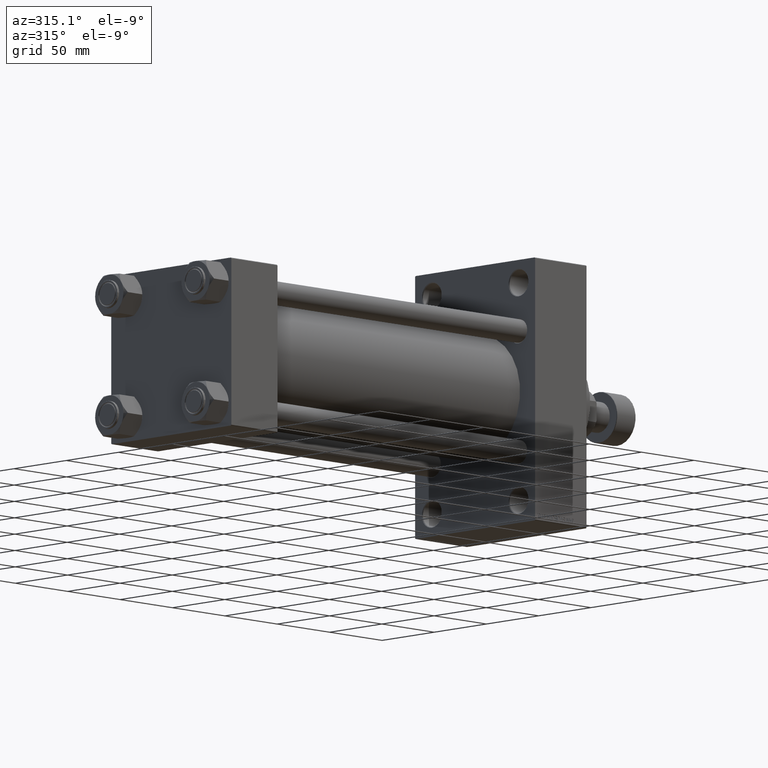
[diagram: clean part render]
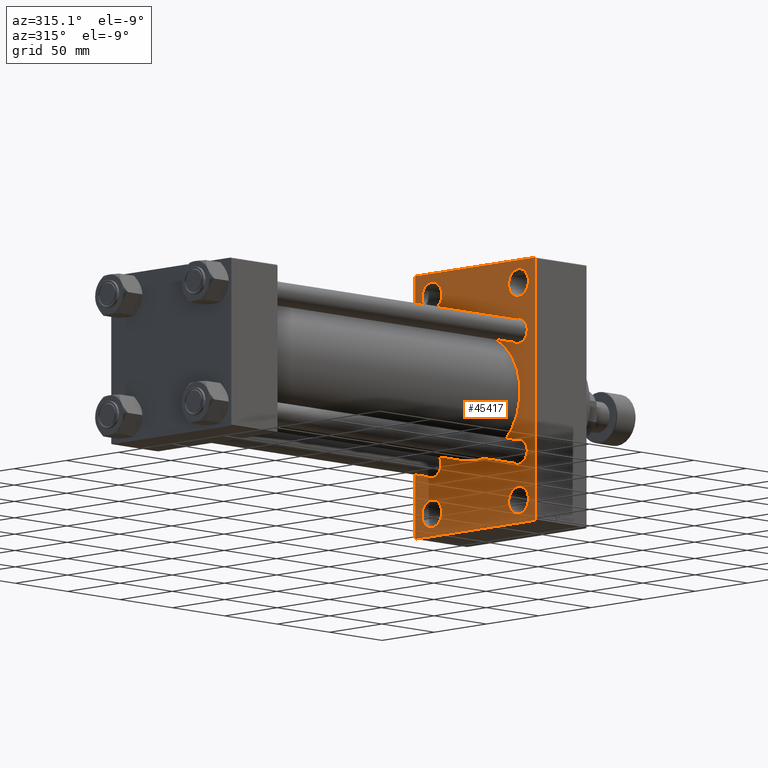
[diagram: same view with one face highlighted and labeled with its STEP entity id]
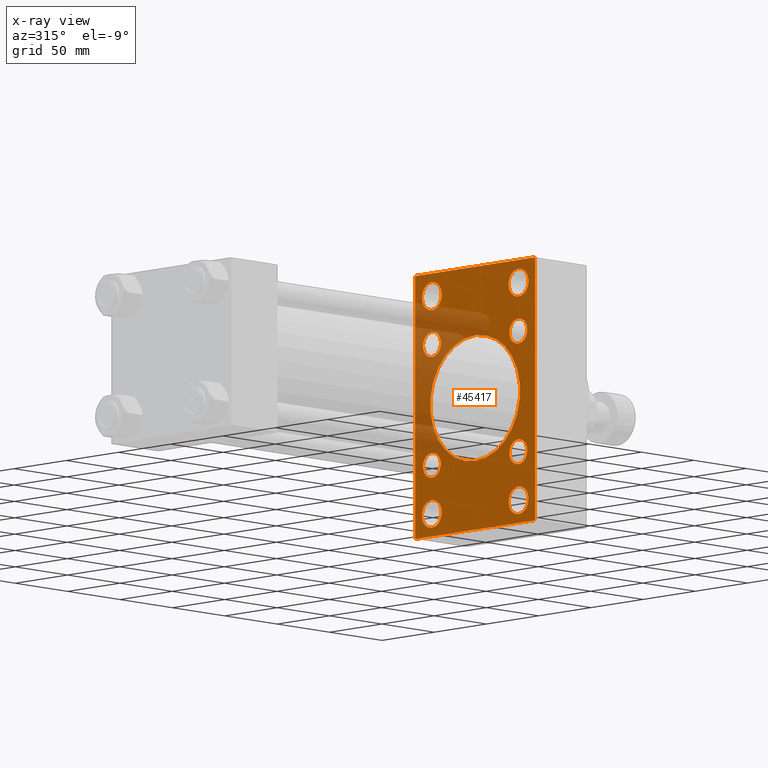
[diagram: x-ray of the same camera — body ghosted, the highlighted face saturated]
A machine part, auxiliary view. The second image highlights one B-rep face of the part: STEP entity #45417.
The next image is the same camera in x-ray: the body ghosted, the highlighted face saturated — about 22% of this face is hidden behind the body in this view.
In plain terms, the highlighted planar face has unit normal (-1, 0, 0).
Its self-contained STEP definition (entity closure, byte-faithful):
#11 = ORIENTED_EDGE ( 'NONE', *, *, #24972, .T. ) ;
#196 = EDGE_CURVE ( 'NONE', #24180, #32786, #36204, .T. ) ;
#393 = VECTOR ( 'NONE', #35275, 1000.000000000000000 ) ;
#429 = CARTESIAN_POINT ( 'NONE',  ( 290.0000000000000000, 41.50000000000000711, 65.00000000000000000 ) ) ;
#466 = CARTESIAN_POINT ( 'NONE',  ( 290.0000000000000000, -41.49999999999999289, -74.49999999999998579 ) ) ;
#511 = VERTEX_POINT ( 'NONE', #1523 ) ;
#704 = CARTESIAN_POINT ( 'NONE',  ( 290.0000000000000000, -41.34999999999998721, -49.85000000000002274 ) ) ;
#714 = ORIENTED_EDGE ( 'NONE', *, *, #2496, .T. ) ;
#948 = DIRECTION ( 'NONE',  ( 0.000000000000000000, 0.000000000000000000, 1.000000000000000000 ) ) ;
#1030 = VERTEX_POINT ( 'NONE', #5550 ) ;
#1402 = ORIENTED_EDGE ( 'NONE', *, *, #31192, .F. ) ;
#1523 = CARTESIAN_POINT ( 'NONE',  ( 290.0000000000000000, -41.49999999999999289, -64.99999999999997158 ) ) ;
#1708 = EDGE_CURVE ( 'NONE', #28009, #21778, #20648, .T. ) ;
#1860 = CARTESIAN_POINT ( 'NONE',  ( 290.0000000000000000, -41.49999999999999289, -74.49999999999998579 ) ) ;
#1939 = EDGE_CURVE ( 'NONE', #12307, #47914, #27472, .T. ) ;
#1952 = CIRCLE ( 'NONE', #13674, 43.00000000000000000 ) ;
#2054 = EDGE_CURVE ( 'NONE', #10765, #42733, #3741, .T. ) ;
#2078 = CARTESIAN_POINT ( 'NONE',  ( 290.0000000000000000, 41.50000000000000711, -74.50000000000000000 ) ) ;
#2252 = DIRECTION ( 'NONE',  ( 0.000000000000000000, 0.000000000000000000, 1.000000000000000000 ) ) ;
#2443 = EDGE_CURVE ( 'NONE', #16020, #24428, #12882, .T. ) ;
#2496 = EDGE_CURVE ( 'NONE', #2641, #30659, #1952, .T. ) ;
#2535 = DIRECTION ( 'NONE',  ( 0.000000000000000000, 0.000000000000000000, 1.000000000000000000 ) ) ;
#2641 = VERTEX_POINT ( 'NONE', #33364 ) ;
#3225 = CARTESIAN_POINT ( 'NONE',  ( 290.0000000000000000, -41.49999999999999289, 65.00000000000000000 ) ) ;
#3315 = DIRECTION ( 'NONE',  ( 0.000000000000000000, 0.000000000000000000, -1.000000000000000000 ) ) ;
#3741 = LINE ( 'NONE', #14992, #9767 ) ;
#4019 = DIRECTION ( 'NONE',  ( 1.000000000000000000, -0.000000000000000000, 0.000000000000000000 ) ) ;
#4102 = VERTEX_POINT ( 'NONE', #34522 ) ;
#4231 = CARTESIAN_POINT ( 'NONE',  ( 290.0000000000000000, 57.00000000000003553, -90.00000000000000000 ) ) ;
#4462 = DIRECTION ( 'NONE',  ( 0.000000000000000000, 0.000000000000000000, -1.000000000000000000 ) ) ;
#4953 = EDGE_LOOP ( 'NONE', ( #24968, #43714 ) ) ;
#4995 = LINE ( 'NONE', #23588, #27902 ) ;
#5192 = EDGE_CURVE ( 'NONE', #21778, #28009, #18469, .T. ) ;
#5207 = FACE_BOUND ( 'NONE', #25073, .T. ) ;
#5397 = VERTEX_POINT ( 'NONE', #38360 ) ;
#5433 = CARTESIAN_POINT ( 'NONE',  ( 290.0000000000000000, 41.50000000000000711, 74.50000000000001421 ) ) ;
#5550 = CARTESIAN_POINT ( 'NONE',  ( 290.0000000000000000, 57.49999999999997158, 89.49999999999998579 ) ) ;
#5689 = EDGE_CURVE ( 'NONE', #47914, #34623, #47751, .T. ) ;
#5862 = DIRECTION ( 'NONE',  ( 0.000000000000000000, 0.000000000000000000, 1.000000000000000000 ) ) ;
#6105 = CARTESIAN_POINT ( 'NONE',  ( 290.0000000000000000, 41.50000000000000711, -64.99999999999998579 ) ) ;
#6117 = ORIENTED_EDGE ( 'NONE', *, *, #30670, .T. ) ;
#6260 = VERTEX_POINT ( 'NONE', #20992 ) ;
#6386 = DIRECTION ( 'NONE',  ( 1.000000000000000000, -0.000000000000000000, 0.000000000000000000 ) ) ;
#6897 = CIRCLE ( 'NONE', #17824, 43.00000000000000000 ) ;
#7333 = ORIENTED_EDGE ( 'NONE', *, *, #44594, .T. ) ;
#7463 = CARTESIAN_POINT ( 'NONE',  ( 290.0000000000000000, 57.49999999999997158, 89.99999999999998579 ) ) ;
#7680 = CARTESIAN_POINT ( 'NONE',  ( 290.0000000000000000, 41.50000000000000711, 74.50000000000001421 ) ) ;
#7916 = FACE_BOUND ( 'NONE', #17541, .T. ) ;
#8126 = DIRECTION ( 'NONE',  ( 1.000000000000000000, -0.000000000000000000, 0.000000000000000000 ) ) ;
#8155 = DIRECTION ( 'NONE',  ( -0.000000000000000000, 0.000000000000000000, 1.000000000000000000 ) ) ;
#8206 = AXIS2_PLACEMENT_3D ( 'NONE', #42210, #31913, #46832 ) ;
#8295 = CARTESIAN_POINT ( 'NONE',  ( 290.0000000000000000, -41.49999999999999289, 74.50000000000001421 ) ) ;
#8557 = ORIENTED_EDGE ( 'NONE', *, *, #14142, .T. ) ;
#8584 = CARTESIAN_POINT ( 'NONE',  ( 290.0000000000000000, -41.49999999999999289, 74.50000000000001421 ) ) ;
#8870 = FACE_BOUND ( 'NONE', #9585, .T. ) ;
#9135 = CARTESIAN_POINT ( 'NONE',  ( 290.0000000000000000, 57.49999999999997868, -90.00000000000000000 ) ) ;
#9157 = CARTESIAN_POINT ( 'NONE',  ( 290.0000000000000000, 41.50000000000000711, 84.00000000000001421 ) ) ;
#9387 = AXIS2_PLACEMENT_3D ( 'NONE', #8295, #6386, #19056 ) ;
#9585 = EDGE_LOOP ( 'NONE', ( #14066, #47307 ) ) ;
#9695 = AXIS2_PLACEMENT_3D ( 'NONE', #17210, #21104, #2535 ) ;
#9767 = VECTOR ( 'NONE', #22557, 1000.000000000000000 ) ;
#10006 = AXIS2_PLACEMENT_3D ( 'NONE', #35910, #39337, #5862 ) ;
#10045 = VERTEX_POINT ( 'NONE', #42248 ) ;
#10152 = DIRECTION ( 'NONE',  ( 1.000000000000000000, -0.000000000000000000, 0.000000000000000000 ) ) ;
#10217 = AXIS2_PLACEMENT_3D ( 'NONE', #5433, #46498, #2252 ) ;
#10410 = DIRECTION ( 'NONE',  ( 1.000000000000000000, 0.000000000000000000, 0.000000000000000000 ) ) ;
#10765 = VERTEX_POINT ( 'NONE', #42258 ) ;
#10820 = CIRCLE ( 'NONE', #17056, 9.500000000000008882 ) ;
#11018 = ORIENTED_EDGE ( 'NONE', *, *, #36701, .T. ) ;
#11117 = ORIENTED_EDGE ( 'NONE', *, *, #13484, .T. ) ;
#11438 = AXIS2_PLACEMENT_3D ( 'NONE', #23616, #24094, #34837 ) ;
#11453 = VECTOR ( 'NONE', #18182, 1000.000000000000114 ) ;
#11830 = FACE_BOUND ( 'NONE', #13782, .T. ) ;
#12192 = EDGE_CURVE ( 'NONE', #10765, #1030, #4995, .T. ) ;
#12307 = VERTEX_POINT ( 'NONE', #4231 ) ;
#12882 = CIRCLE ( 'NONE', #8206, 8.500000000000007105 ) ;
#13402 = CARTESIAN_POINT ( 'NONE',  ( 290.0000000000000000, 41.34999999999999432, 32.84999999999999432 ) ) ;
#13484 = EDGE_CURVE ( 'NONE', #32786, #24180, #35737, .T. ) ;
#13622 = CARTESIAN_POINT ( 'NONE',  ( 290.0000000000000000, -57.00000000000002132, -90.00000000000001421 ) ) ;
#13674 = AXIS2_PLACEMENT_3D ( 'NONE', #21648, #10410, #25325 ) ;
#13765 = AXIS2_PLACEMENT_3D ( 'NONE', #2078, #16995, #36034 ) ;
#13782 = EDGE_LOOP ( 'NONE', ( #8557, #14266 ) ) ;
#13828 = LINE ( 'NONE', #22137, #19149 ) ;
#14066 = ORIENTED_EDGE ( 'NONE', *, *, #38138, .T. ) ;
#14142 = EDGE_CURVE ( 'NONE', #20906, #40035, #10820, .T. ) ;
#14266 = ORIENTED_EDGE ( 'NONE', *, *, #22084, .T. ) ;
#14992 = CARTESIAN_POINT ( 'NONE',  ( 290.0000000000000000, 57.49999999999997158, 89.99999999999998579 ) ) ;
#15102 = EDGE_CURVE ( 'NONE', #10045, #12307, #34306, .T. ) ;
#15329 = AXIS2_PLACEMENT_3D ( 'NONE', #44317, #8126, #25992 ) ;
#15598 = VERTEX_POINT ( 'NONE', #6105 ) ;
#15628 = EDGE_LOOP ( 'NONE', ( #11117, #34945 ) ) ;
#15938 = DIRECTION ( 'NONE',  ( 1.000000000000000000, 0.000000000000000000, 0.000000000000000000 ) ) ;
#15943 = DIRECTION ( 'NONE',  ( 0.000000000000000000, 0.000000000000000000, 1.000000000000000000 ) ) ;
#16020 = VERTEX_POINT ( 'NONE', #18926 ) ;
#16080 = VECTOR ( 'NONE', #41663, 1000.000000000000000 ) ;
#16218 = FACE_BOUND ( 'NONE', #37893, .T. ) ;
#16781 = DIRECTION ( 'NONE',  ( 0.000000000000000000, 0.000000000000000000, 1.000000000000000000 ) ) ;
#16995 = DIRECTION ( 'NONE',  ( 1.000000000000000000, -0.000000000000000000, 0.000000000000000000 ) ) ;
#17056 = AXIS2_PLACEMENT_3D ( 'NONE', #7680, #4019, #22594 ) ;
#17210 = CARTESIAN_POINT ( 'NONE',  ( 290.0000000000000000, -41.34999999999998721, 41.35000000000000853 ) ) ;
#17272 = EDGE_CURVE ( 'NONE', #46358, #5397, #34357, .T. ) ;
#17289 = CARTESIAN_POINT ( 'NONE',  ( 290.0000000000000000, -57.50000000000002132, 89.49999999999997158 ) ) ;
#17425 = CARTESIAN_POINT ( 'NONE',  ( 290.0000000000000000, 41.50000000000000711, -74.50000000000000000 ) ) ;
#17541 = EDGE_LOOP ( 'NONE', ( #22924, #714 ) ) ;
#17824 = AXIS2_PLACEMENT_3D ( 'NONE', #37446, #15938, #4462 ) ;
#17838 = LINE ( 'NONE', #44226, #22562 ) ;
#17952 = CARTESIAN_POINT ( 'NONE',  ( 290.0000000000000000, -41.34999999999998721, -32.85000000000000142 ) ) ;
#18048 = ORIENTED_EDGE ( 'NONE', *, *, #1708, .T. ) ;
#18162 = DIRECTION ( 'NONE',  ( 0.000000000000000000, 0.000000000000000000, 1.000000000000000000 ) ) ;
#18182 = DIRECTION ( 'NONE',  ( 0.000000000000000000, -0.7071067811865965336, 0.7071067811864985009 ) ) ;
#18186 = EDGE_LOOP ( 'NONE', ( #6117, #41566 ) ) ;
#18319 = AXIS2_PLACEMENT_3D ( 'NONE', #17425, #32562, #18162 ) ;
#18469 = CIRCLE ( 'NONE', #15329, 8.500000000000007105 ) ;
#18618 = EDGE_CURVE ( 'NONE', #511, #6260, #41409, .T. ) ;
#18926 = CARTESIAN_POINT ( 'NONE',  ( 290.0000000000000000, 41.34999999999999432, -49.85000000000001563 ) ) ;
#19056 = DIRECTION ( 'NONE',  ( 0.000000000000000000, 0.000000000000000000, 1.000000000000000000 ) ) ;
#19149 = VECTOR ( 'NONE', #3315, 1000.000000000000000 ) ;
#19233 = CARTESIAN_POINT ( 'NONE',  ( 290.0000000000000000, 41.34999999999999432, 41.35000000000000142 ) ) ;
#19256 = ORIENTED_EDGE ( 'NONE', *, *, #2443, .T. ) ;
#19403 = FACE_OUTER_BOUND ( 'NONE', #28725, .T. ) ;
#19415 = DIRECTION ( 'NONE',  ( -0.000000000000000000, -0.7071067811865181518, -0.7071067811865769936 ) ) ;
#19608 = DIRECTION ( 'NONE',  ( 1.000000000000000000, -0.000000000000000000, 0.000000000000000000 ) ) ;
#19639 = CARTESIAN_POINT ( 'NONE',  ( 290.0000000000000000, 0.000000000000000000, 0.000000000000000000 ) ) ;
#20466 = CIRCLE ( 'NONE', #46228, 8.500000000000007105 ) ;
#20648 = CIRCLE ( 'NONE', #47985, 8.500000000000007105 ) ;
#20906 = VERTEX_POINT ( 'NONE', #9157 ) ;
#20992 = CARTESIAN_POINT ( 'NONE',  ( 290.0000000000000000, -41.49999999999999289, -83.99999999999998579 ) ) ;
#21104 = DIRECTION ( 'NONE',  ( 1.000000000000000000, -0.000000000000000000, 0.000000000000000000 ) ) ;
#21292 = ORIENTED_EDGE ( 'NONE', *, *, #17272, .T. ) ;
#21526 = ORIENTED_EDGE ( 'NONE', *, *, #5689, .T. ) ;
#21648 = CARTESIAN_POINT ( 'NONE',  ( 290.0000000000000000, -2.602085213965210642E-15, 0.000000000000000000 ) ) ;
#21699 = CARTESIAN_POINT ( 'NONE',  ( 290.0000000000000000, 41.34999999999999432, -32.84999999999999432 ) ) ;
#21778 = VERTEX_POINT ( 'NONE', #17952 ) ;
#22084 = EDGE_CURVE ( 'NONE', #40035, #20906, #22716, .T. ) ;
#22137 = CARTESIAN_POINT ( 'NONE',  ( 290.0000000000000000, -57.50000000000002132, 89.99999999999997158 ) ) ;
#22328 = AXIS2_PLACEMENT_3D ( 'NONE', #1860, #42922, #16781 ) ;
#22557 = DIRECTION ( 'NONE',  ( 0.000000000000000000, -1.000000000000000000, -1.206764157201257291E-16 ) ) ;
#22562 = VECTOR ( 'NONE', #28578, 1000.000000000000000 ) ;
#22594 = DIRECTION ( 'NONE',  ( 0.000000000000000000, 0.000000000000000000, 1.000000000000000000 ) ) ;
#22716 = CIRCLE ( 'NONE', #10217, 9.500000000000008882 ) ;
#22848 = CARTESIAN_POINT ( 'NONE',  ( 290.0000000000000000, 73.50000000000240163, -73.49999999999627676 ) ) ;
#22924 = ORIENTED_EDGE ( 'NONE', *, *, #41346, .T. ) ;
#22986 = ORIENTED_EDGE ( 'NONE', *, *, #12192, .T. ) ;
#23508 = DIRECTION ( 'NONE',  ( 1.000000000000000000, -0.000000000000000000, 0.000000000000000000 ) ) ;
#23536 = EDGE_CURVE ( 'NONE', #39920, #4102, #42287, .T. ) ;
#23588 = CARTESIAN_POINT ( 'NONE',  ( 290.0000000000000000, 73.49999999999678835, 73.50000000000494538 ) ) ;
#23616 = CARTESIAN_POINT ( 'NONE',  ( 290.0000000000000000, 41.34999999999999432, 41.35000000000000142 ) ) ;
#24094 = DIRECTION ( 'NONE',  ( 1.000000000000000000, -0.000000000000000000, 0.000000000000000000 ) ) ;
#24180 = VERTEX_POINT ( 'NONE', #25982 ) ;
#24428 = VERTEX_POINT ( 'NONE', #21699 ) ;
#24590 = CARTESIAN_POINT ( 'NONE',  ( 290.0000000000000000, -41.34999999999998721, -41.35000000000000853 ) ) ;
#24968 = ORIENTED_EDGE ( 'NONE', *, *, #18618, .T. ) ;
#24972 = EDGE_CURVE ( 'NONE', #24428, #16020, #20466, .T. ) ;
#25073 = EDGE_LOOP ( 'NONE', ( #42085, #18048 ) ) ;
#25075 = DIRECTION ( 'NONE',  ( 0.000000000000000000, 0.000000000000000000, 1.000000000000000000 ) ) ;
#25096 = AXIS2_PLACEMENT_3D ( 'NONE', #466, #41996, #948 ) ;
#25325 = DIRECTION ( 'NONE',  ( 0.000000000000000000, 0.000000000000000000, -1.000000000000000000 ) ) ;
#25982 = CARTESIAN_POINT ( 'NONE',  ( 290.0000000000000000, -41.34999999999998721, 32.85000000000000142 ) ) ;
#25992 = DIRECTION ( 'NONE',  ( 0.000000000000000000, 0.000000000000000000, 1.000000000000000000 ) ) ;
#26300 = AXIS2_PLACEMENT_3D ( 'NONE', #8584, #23508, #31058 ) ;
#26761 = LINE ( 'NONE', #7463, #16080 ) ;
#27472 = LINE ( 'NONE', #9135, #393 ) ;
#27902 = VECTOR ( 'NONE', #42387, 1000.000000000000000 ) ;
#28009 = VERTEX_POINT ( 'NONE', #704 ) ;
#28452 = CIRCLE ( 'NONE', #18319, 9.500000000000008882 ) ;
#28578 = DIRECTION ( 'NONE',  ( -0.000000000000000000, 0.7071067811865131558, 0.7071067811865818786 ) ) ;
#28725 = EDGE_LOOP ( 'NONE', ( #47602, #21526, #1402, #7333, #30001, #22986, #11018, #32126 ) ) ;
#29431 = FACE_BOUND ( 'NONE', #37946, .T. ) ;
#29540 = ORIENTED_EDGE ( 'NONE', *, *, #38841, .T. ) ;
#29692 = VERTEX_POINT ( 'NONE', #41768 ) ;
#30001 = ORIENTED_EDGE ( 'NONE', *, *, #2054, .F. ) ;
#30659 = VERTEX_POINT ( 'NONE', #40641 ) ;
#30670 = EDGE_CURVE ( 'NONE', #15598, #29692, #28452, .T. ) ;
#30866 = PLANE ( 'NONE',  #48344 ) ;
#31058 = DIRECTION ( 'NONE',  ( 0.000000000000000000, 0.000000000000000000, 1.000000000000000000 ) ) ;
#31108 = FACE_BOUND ( 'NONE', #15628, .T. ) ;
#31192 = EDGE_CURVE ( 'NONE', #44916, #34623, #13828, .T. ) ;
#31649 = CIRCLE ( 'NONE', #22328, 9.500000000000008882 ) ;
#31913 = DIRECTION ( 'NONE',  ( 1.000000000000000000, -0.000000000000000000, 0.000000000000000000 ) ) ;
#32126 = ORIENTED_EDGE ( 'NONE', *, *, #15102, .T. ) ;
#32562 = DIRECTION ( 'NONE',  ( 1.000000000000000000, -0.000000000000000000, 0.000000000000000000 ) ) ;
#32786 = VERTEX_POINT ( 'NONE', #40697 ) ;
#33364 = CARTESIAN_POINT ( 'NONE',  ( 290.0000000000000000, 2.663896022368408223E-15, -43.00000000000000000 ) ) ;
#33435 = CARTESIAN_POINT ( 'NONE',  ( 290.0000000000000000, -57.00000000000007105, 89.99999999999997158 ) ) ;
#34306 = LINE ( 'NONE', #22848, #42960 ) ;
#34357 = CIRCLE ( 'NONE', #9387, 9.500000000000008882 ) ;
#34522 = CARTESIAN_POINT ( 'NONE',  ( 290.0000000000000000, 41.34999999999999432, 49.85000000000001563 ) ) ;
#34623 = VERTEX_POINT ( 'NONE', #45856 ) ;
#34837 = DIRECTION ( 'NONE',  ( 0.000000000000000000, 0.000000000000000000, 1.000000000000000000 ) ) ;
#34945 = ORIENTED_EDGE ( 'NONE', *, *, #196, .T. ) ;
#35226 = AXIS2_PLACEMENT_3D ( 'NONE', #19233, #45382, #41709 ) ;
#35275 = DIRECTION ( 'NONE',  ( 0.000000000000000000, -1.000000000000000000, -1.206764157201257045E-16 ) ) ;
#35737 = CIRCLE ( 'NONE', #10006, 8.500000000000007105 ) ;
#35910 = CARTESIAN_POINT ( 'NONE',  ( 290.0000000000000000, -41.34999999999998721, 41.35000000000000853 ) ) ;
#36034 = DIRECTION ( 'NONE',  ( 0.000000000000000000, 0.000000000000000000, 1.000000000000000000 ) ) ;
#36204 = CIRCLE ( 'NONE', #9695, 8.500000000000007105 ) ;
#36471 = EDGE_CURVE ( 'NONE', #6260, #511, #31649, .T. ) ;
#36701 = EDGE_CURVE ( 'NONE', #1030, #10045, #26761, .T. ) ;
#37446 = CARTESIAN_POINT ( 'NONE',  ( 290.0000000000000000, -2.602085213965210642E-15, 0.000000000000000000 ) ) ;
#37726 = DIRECTION ( 'NONE',  ( -1.000000000000000000, 0.000000000000000000, -0.000000000000000000 ) ) ;
#37893 = EDGE_LOOP ( 'NONE', ( #11, #19256 ) ) ;
#37946 = EDGE_LOOP ( 'NONE', ( #29540, #21292 ) ) ;
#38138 = EDGE_CURVE ( 'NONE', #4102, #39920, #46560, .T. ) ;
#38205 = FACE_BOUND ( 'NONE', #18186, .T. ) ;
#38251 = EDGE_CURVE ( 'NONE', #29692, #15598, #44990, .T. ) ;
#38360 = CARTESIAN_POINT ( 'NONE',  ( 290.0000000000000000, -41.49999999999999289, 84.00000000000001421 ) ) ;
#38841 = EDGE_CURVE ( 'NONE', #5397, #46358, #45021, .T. ) ;
#39337 = DIRECTION ( 'NONE',  ( 1.000000000000000000, -0.000000000000000000, 0.000000000000000000 ) ) ;
#39920 = VERTEX_POINT ( 'NONE', #13402 ) ;
#40035 = VERTEX_POINT ( 'NONE', #429 ) ;
#40413 = CARTESIAN_POINT ( 'NONE',  ( 290.0000000000000000, -73.49999999999603517, -73.50000000000625278 ) ) ;
#40641 = CARTESIAN_POINT ( 'NONE',  ( 290.0000000000000000, -2.602085213965210642E-15, 43.00000000000000000 ) ) ;
#40697 = CARTESIAN_POINT ( 'NONE',  ( 290.0000000000000000, -41.34999999999998721, 49.85000000000002274 ) ) ;
#41346 = EDGE_CURVE ( 'NONE', #30659, #2641, #6897, .T. ) ;
#41409 = CIRCLE ( 'NONE', #25096, 9.500000000000008882 ) ;
#41566 = ORIENTED_EDGE ( 'NONE', *, *, #38251, .T. ) ;
#41603 = CARTESIAN_POINT ( 'NONE',  ( 290.0000000000000000, 41.34999999999999432, -41.35000000000000142 ) ) ;
#41663 = DIRECTION ( 'NONE',  ( 0.000000000000000000, 3.854941057726238467E-17, -1.000000000000000000 ) ) ;
#41709 = DIRECTION ( 'NONE',  ( 0.000000000000000000, 0.000000000000000000, 1.000000000000000000 ) ) ;
#41768 = CARTESIAN_POINT ( 'NONE',  ( 290.0000000000000000, 41.50000000000000711, -84.00000000000000000 ) ) ;
#41996 = DIRECTION ( 'NONE',  ( 1.000000000000000000, -0.000000000000000000, 0.000000000000000000 ) ) ;
#42085 = ORIENTED_EDGE ( 'NONE', *, *, #5192, .T. ) ;
#42210 = CARTESIAN_POINT ( 'NONE',  ( 290.0000000000000000, 41.34999999999999432, -41.35000000000000142 ) ) ;
#42248 = CARTESIAN_POINT ( 'NONE',  ( 290.0000000000000000, 57.49999999999997868, -89.49999999999995737 ) ) ;
#42258 = CARTESIAN_POINT ( 'NONE',  ( 290.0000000000000000, 56.99999999999992184, 89.99999999999998579 ) ) ;
#42287 = CIRCLE ( 'NONE', #35226, 8.500000000000007105 ) ;
#42387 = DIRECTION ( 'NONE',  ( 0.000000000000000000, 0.7071067811865867636, -0.7071067811865081598 ) ) ;
#42733 = VERTEX_POINT ( 'NONE', #33435 ) ;
#42922 = DIRECTION ( 'NONE',  ( 1.000000000000000000, -0.000000000000000000, 0.000000000000000000 ) ) ;
#42960 = VECTOR ( 'NONE', #19415, 1000.000000000000000 ) ;
#43714 = ORIENTED_EDGE ( 'NONE', *, *, #36471, .T. ) ;
#44226 = CARTESIAN_POINT ( 'NONE',  ( 290.0000000000000000, -73.50000000000278533, 73.49999999999565148 ) ) ;
#44317 = CARTESIAN_POINT ( 'NONE',  ( 290.0000000000000000, -41.34999999999998721, -41.35000000000000853 ) ) ;
#44350 = FACE_BOUND ( 'NONE', #4953, .T. ) ;
#44594 = EDGE_CURVE ( 'NONE', #44916, #42733, #17838, .T. ) ;
#44916 = VERTEX_POINT ( 'NONE', #17289 ) ;
#44990 = CIRCLE ( 'NONE', #13765, 9.500000000000008882 ) ;
#45021 = CIRCLE ( 'NONE', #26300, 9.500000000000008882 ) ;
#45382 = DIRECTION ( 'NONE',  ( 1.000000000000000000, -0.000000000000000000, 0.000000000000000000 ) ) ;
#45417 = ADVANCED_FACE ( 'NONE', ( #29431, #44350, #38205, #11830, #31108, #8870, #16218, #5207, #7916, #19403 ), #30866, .T. ) ;
#45856 = CARTESIAN_POINT ( 'NONE',  ( 290.0000000000000000, -57.50000000000002132, -89.50000000000002842 ) ) ;
#46228 = AXIS2_PLACEMENT_3D ( 'NONE', #41603, #19608, #15943 ) ;
#46358 = VERTEX_POINT ( 'NONE', #3225 ) ;
#46498 = DIRECTION ( 'NONE',  ( 1.000000000000000000, -0.000000000000000000, 0.000000000000000000 ) ) ;
#46560 = CIRCLE ( 'NONE', #11438, 8.500000000000007105 ) ;
#46832 = DIRECTION ( 'NONE',  ( 0.000000000000000000, 0.000000000000000000, 1.000000000000000000 ) ) ;
#47307 = ORIENTED_EDGE ( 'NONE', *, *, #23536, .T. ) ;
#47602 = ORIENTED_EDGE ( 'NONE', *, *, #1939, .T. ) ;
#47751 = LINE ( 'NONE', #40413, #11453 ) ;
#47914 = VERTEX_POINT ( 'NONE', #13622 ) ;
#47985 = AXIS2_PLACEMENT_3D ( 'NONE', #24590, #10152, #25075 ) ;
#48344 = AXIS2_PLACEMENT_3D ( 'NONE', #19639, #37726, #8155 ) ;